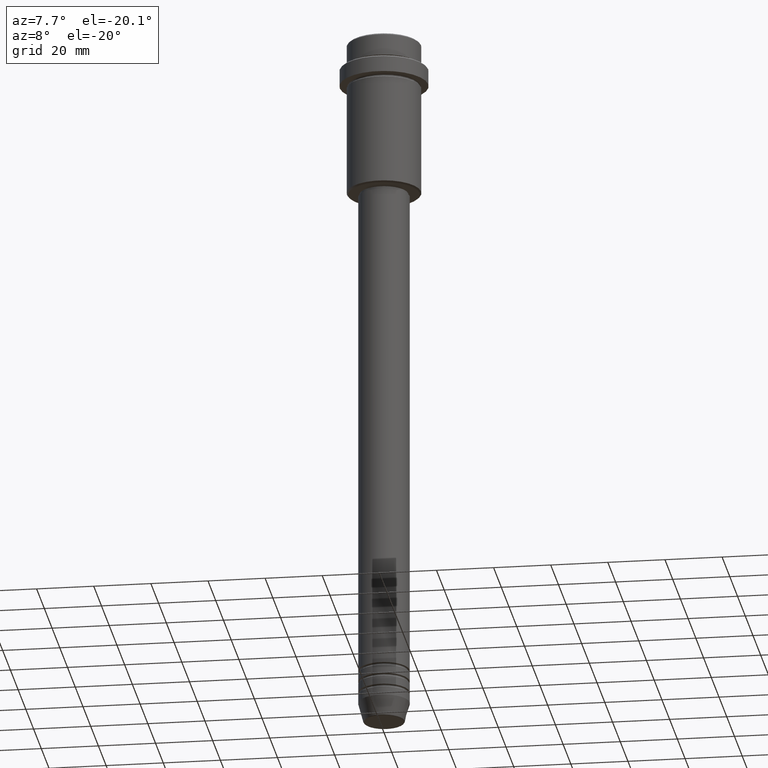
[diagram: clean part render]
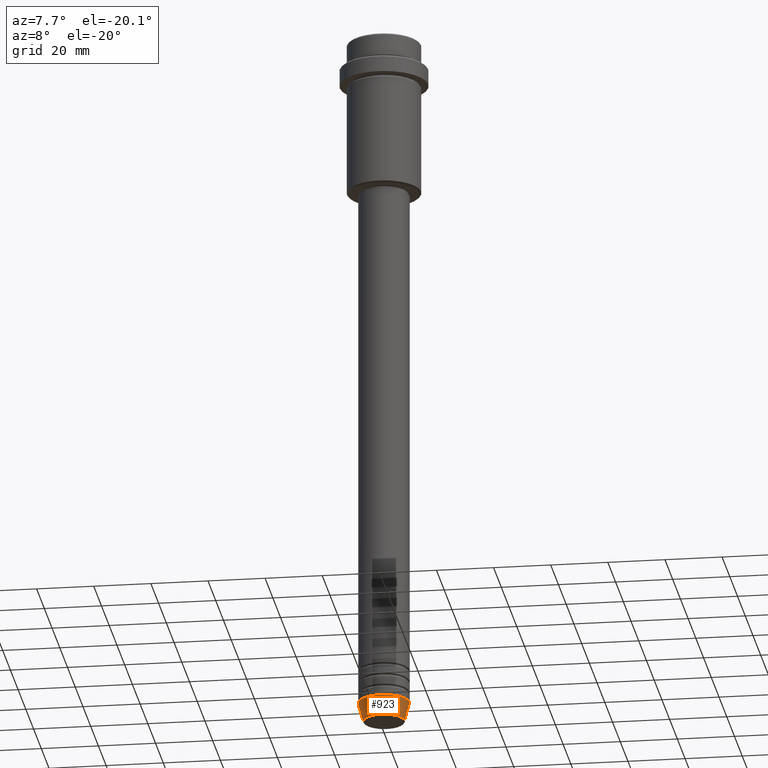
[diagram: same view with one face highlighted and labeled with its STEP entity id]
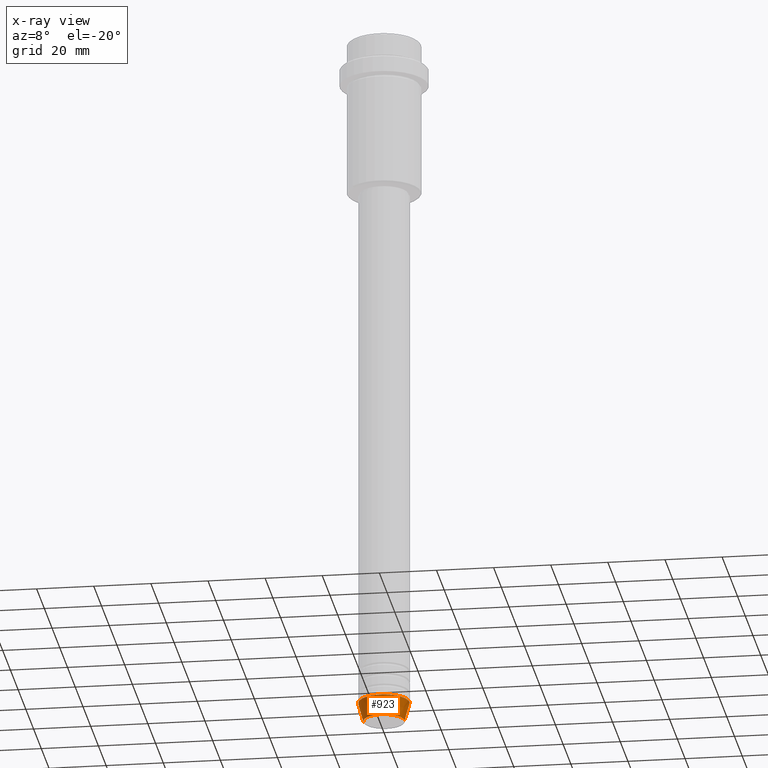
[diagram: x-ray of the same camera — body ghosted, the highlighted face saturated]
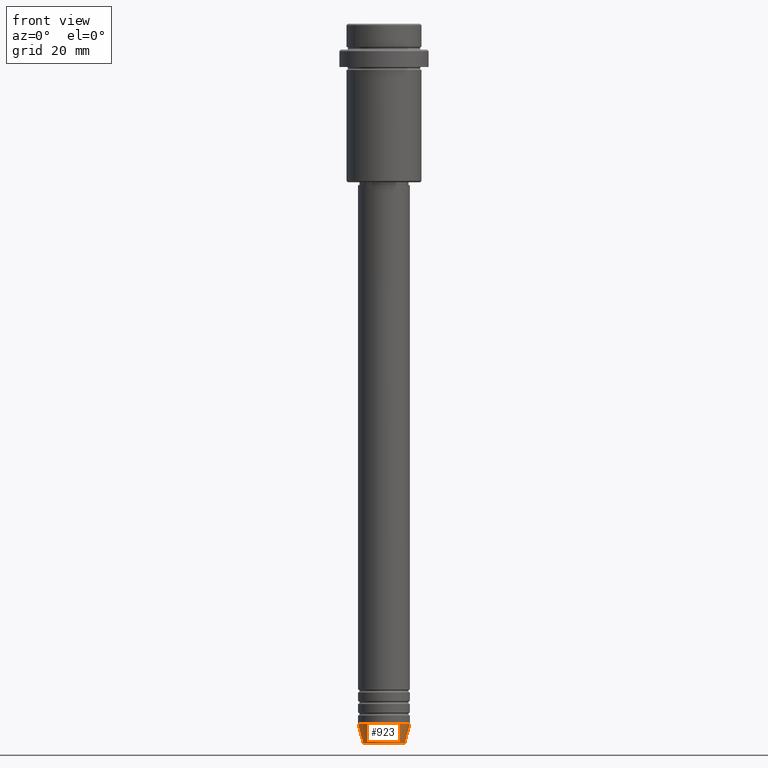
[diagram: same view with one face highlighted and labeled with its STEP entity id]
A machine part, auxiliary view. The second image highlights one B-rep face of the part: STEP entity #923.
The next image is the same camera in x-ray: the body ghosted, the highlighted face saturated — about 0% of this face is hidden behind the body in this view.
A second angle (front view) of the same face is appended — the face is thin or edge-on in the first view.
In plain terms, the highlighted conical surface has half-angle 15 deg.
Its self-contained STEP definition (entity closure, byte-faithful):
#78 = DIRECTION ( 'NONE',  ( 1.000000000000000000, 0.000000000000000000, 0.000000000000000000 ) ) ;
#84 = CARTESIAN_POINT ( 'NONE',  ( 0.000000000000000000, 0.000000000000000000, -243.0000000000000000 ) ) ;
#91 = CARTESIAN_POINT ( 'NONE',  ( 0.000000000000000000, 0.000000000000000000, -249.6294095225512706 ) ) ;
#120 = VERTEX_POINT ( 'NONE', #377 ) ;
#162 = ORIENTED_EDGE ( 'NONE', *, *, #1205, .T. ) ;
#177 = EDGE_CURVE ( 'NONE', #120, #860, #1254, .T. ) ;
#196 = DIRECTION ( 'NONE',  ( -0.000000000000000000, -0.000000000000000000, 1.000000000000000000 ) ) ;
#262 = DIRECTION ( 'NONE',  ( -0.2588190451025213501, 3.169619151431772337E-17, 0.9659258262890680902 ) ) ;
#320 = FACE_OUTER_BOUND ( 'NONE', #1305, .T. ) ;
#377 = CARTESIAN_POINT ( 'NONE',  ( -7.223655072137189492, 9.934123627281765110E-16, -249.6294095225512706 ) ) ;
#408 = LINE ( 'NONE', #771, #1378 ) ;
#449 = DIRECTION ( 'NONE',  ( -0.000000000000000000, -0.000000000000000000, 1.000000000000000000 ) ) ;
#456 = CARTESIAN_POINT ( 'NONE',  ( 9.000000000000000000, 0.000000000000000000, -243.0000000000000000 ) ) ;
#474 = VECTOR ( 'NONE', #262, 1000.000000000000000 ) ;
#478 = VERTEX_POINT ( 'NONE', #869 ) ;
#519 = CONICAL_SURFACE ( 'NONE', #1377, 9.000000000000000000, 0.2617993877991500740 ) ;
#545 = CARTESIAN_POINT ( 'NONE',  ( 0.000000000000000000, 0.000000000000000000, -243.0000000000000000 ) ) ;
#565 = CIRCLE ( 'NONE', #1094, 7.223655072137188604 ) ;
#665 = EDGE_CURVE ( 'NONE', #860, #863, #855, .T. ) ;
#703 = ORIENTED_EDGE ( 'NONE', *, *, #665, .F. ) ;
#761 = DIRECTION ( 'NONE',  ( 1.000000000000000000, 0.000000000000000000, 0.000000000000000000 ) ) ;
#771 = CARTESIAN_POINT ( 'NONE',  ( 9.000000000000000000, 0.000000000000000000, -243.0000000000000000 ) ) ;
#855 = CIRCLE ( 'NONE', #1135, 9.000000000000000000 ) ;
#860 = VERTEX_POINT ( 'NONE', #1108 ) ;
#863 = VERTEX_POINT ( 'NONE', #456 ) ;
#869 = CARTESIAN_POINT ( 'NONE',  ( 7.223655072137188604, 0.000000000000000000, -249.6294095225512706 ) ) ;
#920 = CARTESIAN_POINT ( 'NONE',  ( -9.000000000000000000, 1.102182119232617714E-15, -243.0000000000000000 ) ) ;
#923 = ADVANCED_FACE ( 'NONE', ( #320 ), #519, .T. ) ;
#1036 = ORIENTED_EDGE ( 'NONE', *, *, #1176, .T. ) ;
#1074 = DIRECTION ( 'NONE',  ( 0.2588190451025213501, 0.000000000000000000, 0.9659258262890680902 ) ) ;
#1094 = AXIS2_PLACEMENT_3D ( 'NONE', #91, #1288, #78 ) ;
#1108 = CARTESIAN_POINT ( 'NONE',  ( -9.000000000000000000, 1.102182119232617714E-15, -243.0000000000000000 ) ) ;
#1135 = AXIS2_PLACEMENT_3D ( 'NONE', #84, #196, #1163 ) ;
#1163 = DIRECTION ( 'NONE',  ( 1.000000000000000000, 0.000000000000000000, 0.000000000000000000 ) ) ;
#1176 = EDGE_CURVE ( 'NONE', #478, #863, #408, .T. ) ;
#1205 = EDGE_CURVE ( 'NONE', #120, #478, #565, .T. ) ;
#1254 = LINE ( 'NONE', #920, #474 ) ;
#1288 = DIRECTION ( 'NONE',  ( -0.000000000000000000, -0.000000000000000000, 1.000000000000000000 ) ) ;
#1305 = EDGE_LOOP ( 'NONE', ( #1401, #162, #1036, #703 ) ) ;
#1377 = AXIS2_PLACEMENT_3D ( 'NONE', #545, #449, #761 ) ;
#1378 = VECTOR ( 'NONE', #1074, 1000.000000000000000 ) ;
#1401 = ORIENTED_EDGE ( 'NONE', *, *, #177, .F. ) ;